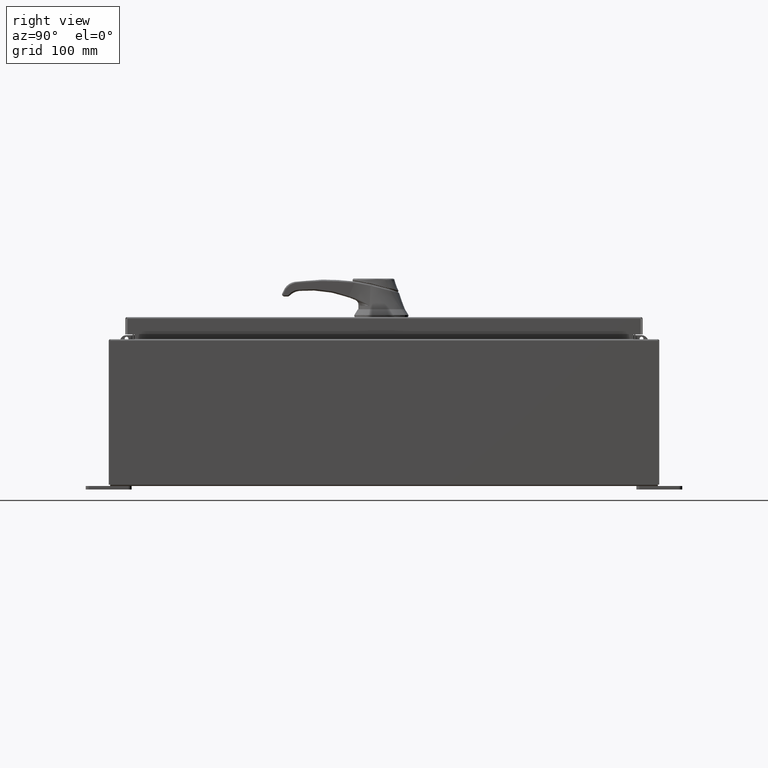
[diagram: clean part render]
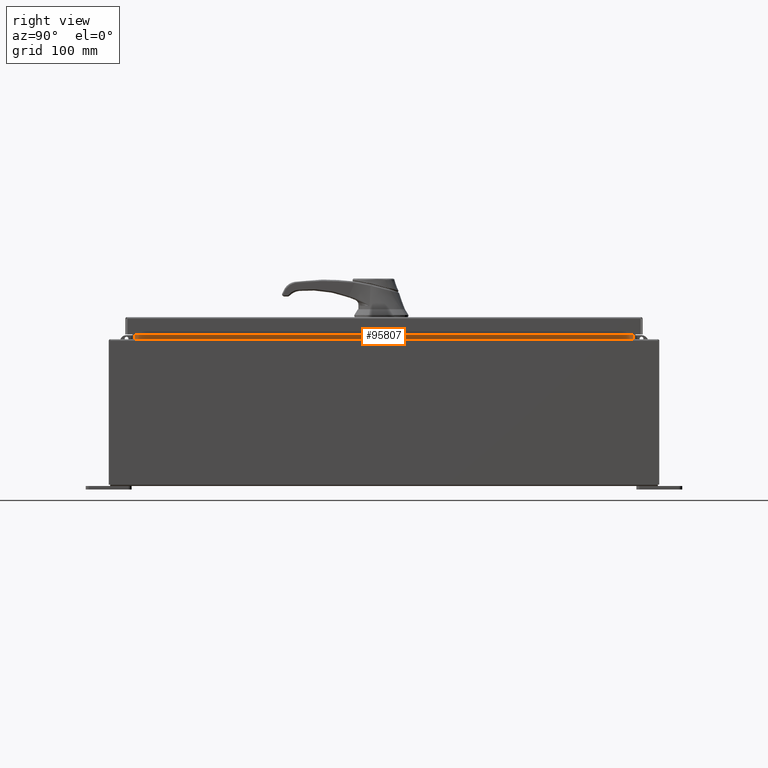
[diagram: same view with one face highlighted and labeled with its STEP entity id]
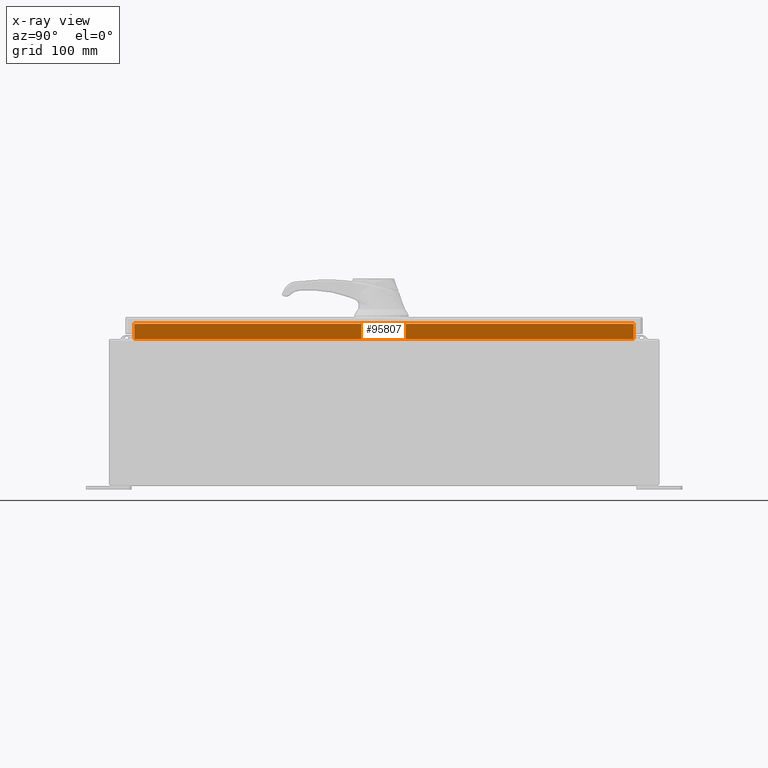
[diagram: x-ray of the same camera — body ghosted, the highlighted face saturated]
A machine part, right view. The second image highlights one B-rep face of the part: STEP entity #95807.
The next image is the same camera in x-ray: the body ghosted, the highlighted face saturated — about 0% of this face is hidden behind the body in this view.
In plain terms, the highlighted planar face has unit normal (1, -0, -0).
Its self-contained STEP definition (entity closure, byte-faithful):
#263 = VECTOR ( 'NONE', #38109, 39.37007874015748100 ) ;
#424 = DIRECTION ( 'NONE',  ( 0.0000000000000000000, 1.000000000000000000, 0.0000000000000000000 ) ) ;
#4349 = AXIS2_PLACEMENT_3D ( 'NONE', #79023, #98722, #44538 ) ;
#7282 = VERTEX_POINT ( 'NONE', #44557 ) ;
#11675 = ORIENTED_EDGE ( 'NONE', *, *, #63200, .F. ) ;
#14700 = VECTOR ( 'NONE', #20933, 39.37007874015748100 ) ;
#17241 = PLANE ( 'NONE',  #4349 ) ;
#18749 = VERTEX_POINT ( 'NONE', #115694 ) ;
#19278 = ORIENTED_EDGE ( 'NONE', *, *, #84895, .F. ) ;
#20933 = DIRECTION ( 'NONE',  ( 4.019270611368110000E-017, -1.000000000000000000, 1.205781183410432900E-016 ) ) ;
#29726 = EDGE_LOOP ( 'NONE', ( #19278, #62520, #31566, #11675 ) ) ;
#31566 = ORIENTED_EDGE ( 'NONE', *, *, #53357, .F. ) ;
#38109 = DIRECTION ( 'NONE',  ( -3.542869979895294000E-015, -0.0000000000000000000, -1.000000000000000000 ) ) ;
#38287 = EDGE_CURVE ( 'NONE', #106480, #18749, #72317, .T. ) ;
#43368 = CARTESIAN_POINT ( 'NONE',  ( 8.699700000000028400, -13.59375000000000000, 7.938300000000009700 ) ) ;
#44538 = DIRECTION ( 'NONE',  ( -3.542869979895294000E-015, 0.0000000000000000000, -1.000000000000000000 ) ) ;
#44557 = CARTESIAN_POINT ( 'NONE',  ( 8.699700000000028400, 13.59375000000000900, 7.938300000000009700 ) ) ;
#47188 = CARTESIAN_POINT ( 'NONE',  ( 8.699700000000028400, 13.59375000000000700, 7.925300000000008900 ) ) ;
#48247 = VECTOR ( 'NONE', #424, 39.37007874015748100 ) ;
#52532 = CARTESIAN_POINT ( 'NONE',  ( 8.699700000000032000, -13.59374999999999800, 8.762900000000009000 ) ) ;
#53357 = EDGE_CURVE ( 'NONE', #112404, #106480, #59831, .T. ) ;
#57154 = FACE_OUTER_BOUND ( 'NONE', #29726, .T. ) ;
#59831 = LINE ( 'NONE', #90837, #107920 ) ;
#62520 = ORIENTED_EDGE ( 'NONE', *, *, #38287, .F. ) ;
#63200 = EDGE_CURVE ( 'NONE', #7282, #112404, #84061, .T. ) ;
#72317 = LINE ( 'NONE', #90611, #48247 ) ;
#74749 = CARTESIAN_POINT ( 'NONE',  ( 8.699700000000028400, 13.59375000000000700, 7.938300000000008800 ) ) ;
#79023 = CARTESIAN_POINT ( 'NONE',  ( 8.699700000000000000, -1.238815808278388900E-030, -3.082190596409509000E-014 ) ) ;
#79085 = DIRECTION ( 'NONE',  ( 3.542869979895298400E-015, -0.0000000000000000000, 1.000000000000000000 ) ) ;
#84061 = LINE ( 'NONE', #74749, #14700 ) ;
#84895 = EDGE_CURVE ( 'NONE', #18749, #7282, #96545, .T. ) ;
#90611 = CARTESIAN_POINT ( 'NONE',  ( 8.699700000000030200, -13.59374999999999800, 8.762900000000009000 ) ) ;
#90837 = CARTESIAN_POINT ( 'NONE',  ( 8.699700000000032000, -13.59374999999999800, 8.850600000000008900 ) ) ;
#95807 = ADVANCED_FACE ( 'NONE', ( #57154 ), #17241, .T. ) ;
#96545 = LINE ( 'NONE', #47188, #263 ) ;
#98722 = DIRECTION ( 'NONE',  ( 1.000000000000000000, -1.423975319009148500E-031, -3.542869979895294000E-015 ) ) ;
#106480 = VERTEX_POINT ( 'NONE', #52532 ) ;
#107920 = VECTOR ( 'NONE', #79085, 39.37007874015748100 ) ;
#112404 = VERTEX_POINT ( 'NONE', #43368 ) ;
#115694 = CARTESIAN_POINT ( 'NONE',  ( 8.699700000000030200, 13.59375000000000700, 8.762900000000009000 ) ) ;